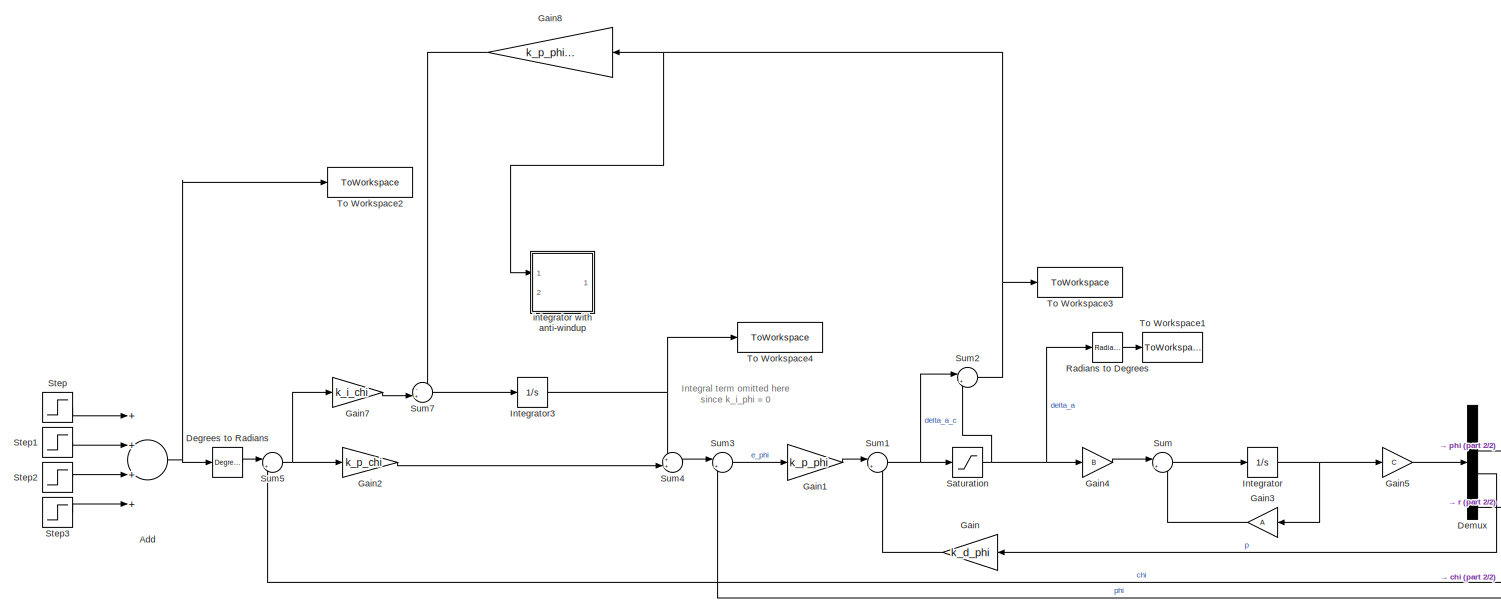
[diagram: root canvas - part 1/2, center side, full height]
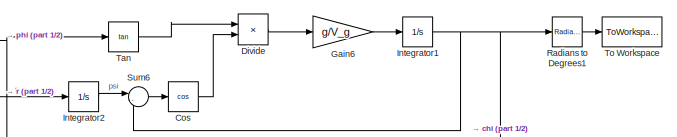
[diagram: root canvas - part 2/2, bottom right region]
MODEL slx_5d6dc7a0242d
KIND model
CONFIG AbsTol = auto
CONFIG EnableMultiTasking = off
CONFIG FixedStep = auto
CONFIG MaxStep = auto
CONFIG MinStep = auto
CONFIG RelTol = 1e-3
CONFIG SampleTimeConstraint = Unconstrained
CONFIG Solver = VariableStepAuto
CONFIG SolverName = VariableStepAuto
CONFIG StartTime = 0.0
CONFIG StopTime = sim_time
BLOCK [Sum] Add
  InputSameDT = off
  Inputs = ++++
  OutDataTypeStr = Inherit: Inherit via internal rule
  Ports = [4, 1]
  SaturateOnIntegerOverflow = off
BLOCK [Trigonometry] Cos
  Operator = cos
  Ports = [1, 1]
BLOCK [Reference] Degrees to Radians  REF=simulink_extras/Transformations/Degrees to
Radians
  Ports = [1, 1]
  SourceBlock = simulink_extras/Transformations/Degrees to\nRadians
  SourceProductBaseCode = SL
  SourceProductName = Simulink
  SourceType = DegreesToRadians
BLOCK [Demux] Demux
  DisplayOption = bar
  Ports = [1, 4]
BLOCK [Product] Divide
  InputSameDT = off
  Inputs = **
  OutDataTypeStr = Inherit: Inherit via internal rule
  Ports = [2, 1]
  RndMeth = Floor
  SaturateOnIntegerOverflow = off
BLOCK [Gain] Gain
  Gain = k_d_phi
  OutDataTypeStr = Inherit: Inherit via internal rule
  ParamDataTypeStr = Inherit: Inherit via internal rule
  SaturateOnIntegerOverflow = off
BLOCK [Gain] Gain1
  Gain = k_p_phi
  OutDataTypeStr = Inherit: Inherit via internal rule
  ParamDataTypeStr = Inherit: Inherit via internal rule
  SaturateOnIntegerOverflow = off
BLOCK [Gain] Gain2
  Gain = k_p_chi
  OutDataTypeStr = Inherit: Inherit via internal rule
  ParamDataTypeStr = Inherit: Inherit via internal rule
  SaturateOnIntegerOverflow = off
BLOCK [Gain] Gain3
  Gain = A
  Multiplication = Matrix(K*u)
  OutDataTypeStr = Inherit: Inherit via internal rule
  ParamDataTypeStr = Inherit: Inherit via internal rule
  SaturateOnIntegerOverflow = off
BLOCK [Gain] Gain4
  Gain = B
  Multiplication = Matrix(K*u)
  OutDataTypeStr = Inherit: Inherit via internal rule
  ParamDataTypeStr = Inherit: Inherit via internal rule
  SaturateOnIntegerOverflow = off
BLOCK [Gain] Gain5
  Gain = C
  Multiplication = Matrix(K*u)
  OutDataTypeStr = Inherit: Inherit via internal rule
  ParamDataTypeStr = Inherit: Inherit via internal rule
  SaturateOnIntegerOverflow = off
BLOCK [Gain] Gain6
  Gain = g/V_g
  OutDataTypeStr = Inherit: Inherit via internal rule
  ParamDataTypeStr = Inherit: Inherit via internal rule
  SaturateOnIntegerOverflow = off
BLOCK [Gain] Gain7
  Gain = k_i_chi
  OutDataTypeStr = Inherit: Inherit via internal rule
  ParamDataTypeStr = Inherit: Inherit via internal rule
  SaturateOnIntegerOverflow = off
BLOCK [Gain] Gain8
  Gain = k_p_phi*k_p_chi*0.5
  OutDataTypeStr = Inherit: Inherit via internal rule
  ParamDataTypeStr = Inherit: Inherit via internal rule
  SaturateOnIntegerOverflow = off
BLOCK [Integrator] Integrator
  Ports = [1, 1]
BLOCK [Integrator] Integrator1
  Ports = [1, 1]
BLOCK [Integrator] Integrator2
  Ports = [1, 1]
BLOCK [Integrator] Integrator3
  Ports = [1, 1]
BLOCK [Reference] Radians to Degrees  REF=simulink_extras/Transformations/Radians
to Degrees
  Ports = [1, 1]
  SourceBlock = simulink_extras/Transformations/Radians\nto Degrees
  SourceProductBaseCode = SL
  SourceProductName = Simulink
  SourceType = RadiansToDegrees
BLOCK [Reference] Radians to Degrees1  REF=simulink_extras/Transformations/Radians
to Degrees
  Ports = [1, 1]
  SourceBlock = simulink_extras/Transformations/Radians\nto Degrees
  SourceProductBaseCode = SL
  SourceProductName = Simulink
  SourceType = RadiansToDegrees
BLOCK [Saturate] Saturation
  InputPortMap = u0
  LowerLimit = -pi/6
  Ports = [1, 1]
  UpperLimit = pi/6
BLOCK [Step] Step
  After = 7.5
  SampleTime = 0
  Time = 100
BLOCK [Step] Step1
  After = 7.5
  SampleTime = 0
  Time = 150
BLOCK [Step] Step2
  After = -15
  SampleTime = 0
  Time = 250
BLOCK [Step] Step3
  After = 0
  SampleTime = 0
  Time = 300
BLOCK [Sum] Sum
  IconShape = round
  InputSameDT = off
  Inputs = |++
  OutDataTypeStr = Inherit: Inherit via internal rule
  Ports = [2, 1]
  SaturateOnIntegerOverflow = off
BLOCK [Sum] Sum1
  IconShape = round
  InputSameDT = off
  Inputs = |+-
  OutDataTypeStr = Inherit: Inherit via internal rule
  Ports = [2, 1]
  SaturateOnIntegerOverflow = off
BLOCK [Sum] Sum2
  IconShape = round
  InputSameDT = off
  Inputs = |+-
  OutDataTypeStr = Inherit: Inherit via internal rule
  Ports = [2, 1]
  SaturateOnIntegerOverflow = off
BLOCK [Sum] Sum3
  IconShape = round
  InputSameDT = off
  Inputs = |+-
  OutDataTypeStr = Inherit: Inherit via internal rule
  Ports = [2, 1]
  SaturateOnIntegerOverflow = off
BLOCK [Sum] Sum4
  IconShape = round
  InputSameDT = off
  Inputs = ++|
  OutDataTypeStr = Inherit: Inherit via internal rule
  Ports = [2, 1]
  SaturateOnIntegerOverflow = off
BLOCK [Sum] Sum5
  IconShape = round
  InputSameDT = off
  Inputs = |+-
  OutDataTypeStr = Inherit: Inherit via internal rule
  Ports = [2, 1]
  SaturateOnIntegerOverflow = off
BLOCK [Sum] Sum6
  IconShape = round
  InputSameDT = off
  Inputs = |-+
  OutDataTypeStr = Inherit: Inherit via internal rule
  Ports = [2, 1]
  SaturateOnIntegerOverflow = off
BLOCK [Sum] Sum7
  IconShape = round
  InputSameDT = off
  Inputs = -+|
  OutDataTypeStr = Inherit: Inherit via internal rule
  Ports = [2, 1]
  SaturateOnIntegerOverflow = off
BLOCK [Trigonometry] Tan
  Operator = tan
  Ports = [1, 1]
BLOCK [ToWorkspace] To Workspace
  FixptAsFi = on
  MaxDataPoints = inf
  Ports = [1]
  SampleTime = -1
  SaveFormat = Timeseries
  VariableName = chi
BLOCK [ToWorkspace] To Workspace1
  FixptAsFi = on
  MaxDataPoints = inf
  Ports = [1]
  SampleTime = -1
  SaveFormat = Timeseries
  VariableName = delta_control
BLOCK [ToWorkspace] To Workspace2
  FixptAsFi = on
  MaxDataPoints = inf
  Ports = [1]
  SampleTime = -1
  SaveFormat = Timeseries
  VariableName = chi_control
BLOCK [ToWorkspace] To Workspace3
  FixptAsFi = on
  MaxDataPoints = inf
  Ports = [1]
  SampleTime = -1
  SaveFormat = Timeseries
  VariableName = delta_saturated
BLOCK [ToWorkspace] To Workspace4
  FixptAsFi = on
  MaxDataPoints = inf
  Ports = [1]
  SampleTime = -1
  SaveFormat = Timeseries
  VariableName = e_chi_integral
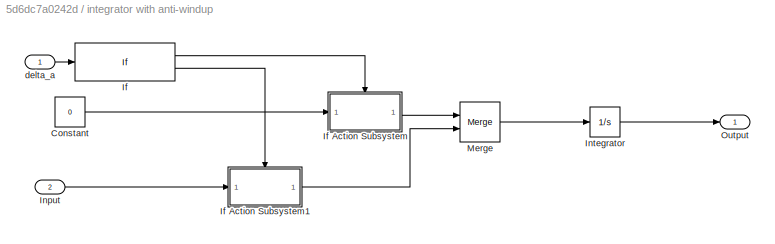
BLOCK [SubSystem] integrator with anti-windup
  Ports = [2, 1]
  RequestExecContextInheritance = off
BLOCK [Constant] integrator with anti-windup/Constant
  Value = 0
BLOCK [If] integrator with anti-windup/If
  IfExpression = u1 ~= 0
  Ports = [1, 2]
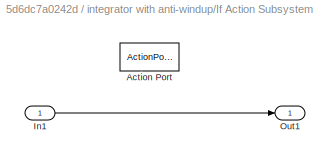
BLOCK [SubSystem] integrator with anti-windup/If Action Subsystem
  Ports = [1, 1, 0, 0, 0, 0, 0, 1]
  RequestExecContextInheritance = off
  TreatAsAtomicUnit = on
BLOCK [ActionPort] integrator with anti-windup/If Action Subsystem/Action Port
  ActionPortLabel = if(u1 ~= 0)
BLOCK [Inport] integrator with anti-windup/If Action Subsystem/In1
  IconDisplay = Port number
BLOCK [Outport] integrator with anti-windup/If Action Subsystem/Out1
  IconDisplay = Port number
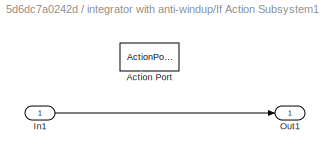
BLOCK [SubSystem] integrator with anti-windup/If Action Subsystem1
  Ports = [1, 1, 0, 0, 0, 0, 0, 1]
  RequestExecContextInheritance = off
  TreatAsAtomicUnit = on
BLOCK [ActionPort] integrator with anti-windup/If Action Subsystem1/Action Port
  ActionPortLabel = else
BLOCK [Inport] integrator with anti-windup/If Action Subsystem1/In1
  IconDisplay = Port number
BLOCK [Outport] integrator with anti-windup/If Action Subsystem1/Out1
  IconDisplay = Port number
BLOCK [Inport] integrator with anti-windup/Input
  IconDisplay = Port number
  Port = 2
BLOCK [Integrator] integrator with anti-windup/Integrator
  Ports = [1, 1]
BLOCK [Merge] integrator with anti-windup/Merge
  Ports = [2, 1]
BLOCK [Outport] integrator with anti-windup/Output
  IconDisplay = Port number
BLOCK [Inport] integrator with anti-windup/delta_a
  IconDisplay = Port number
ANNOTATION (root): Integral term omitted here since k_i_phi = 0
NET Add:1 -> Degrees to Radians:1, To Workspace2:1
LINE Cos:1 -> Divide:2
LINE Degrees to Radians:1 -> Sum5:1
NET Demux:2 -> Sum3:2, Tan:1
LINE Demux:3 -> Gain:1
LINE Demux:4 -> Integrator2:1
LINE Divide:1 -> Gain6:1
LINE Gain1:1 -> Sum1:1
LINE Gain2:1 -> Sum4:2
LINE Gain3:1 -> Sum:2
LINE Gain4:1 -> Sum:1
LINE Gain5:1 -> Demux:1
LINE Gain6:1 -> Integrator1:1
LINE Gain7:1 -> Sum7:2
LINE Gain8:1 -> Sum7:1
LINE Gain:1 -> Sum1:2
NET Integrator1:1 -> Radians to Degrees1:1, Sum5:2, Sum6:2
LINE Integrator2:1 -> Sum6:1
NET Integrator3:1 -> Sum4:1, To Workspace4:1
NET Integrator:1 -> Gain3:1, Gain5:1
LINE Radians to Degrees1:1 -> To Workspace:1
LINE Radians to Degrees:1 -> To Workspace1:1
NET Saturation:1 -> Gain4:1, Radians to Degrees:1, Sum2:2
LINE Step1:1 -> Add:2
LINE Step2:1 -> Add:3
LINE Step3:1 -> Add:4
LINE Step:1 -> Add:1
NET Sum1:1 -> Saturation:1, Sum2:1
NET Sum2:1 -> Gain8:1, To Workspace3:1, integrator with anti-windup:1
LINE Sum3:1 -> Gain1:1
LINE Sum4:1 -> Sum3:1
NET Sum5:1 -> Gain2:1, Gain7:1
LINE Sum6:1 -> Cos:1
LINE Sum7:1 -> Integrator3:1
LINE Sum:1 -> Integrator:1
LINE Tan:1 -> Divide:1
LINE integrator with anti-windup/Constant:1 -> integrator with anti-windup/If Action Subsystem:1
LINE integrator with anti-windup/If Action Subsystem/In1:1 -> integrator with anti-windup/If Action Subsystem/Out1:1
LINE integrator with anti-windup/If Action Subsystem1/In1:1 -> integrator with anti-windup/If Action Subsystem1/Out1:1
LINE integrator with anti-windup/If Action Subsystem1:1 -> integrator with anti-windup/Merge:2
LINE integrator with anti-windup/If Action Subsystem:1 -> integrator with anti-windup/Merge:1
LINE integrator with anti-windup/If:1 -> integrator with anti-windup/If Action Subsystem:ifaction
LINE integrator with anti-windup/If:2 -> integrator with anti-windup/If Action Subsystem1:ifaction
LINE integrator with anti-windup/Input:1 -> integrator with anti-windup/If Action Subsystem1:1
LINE integrator with anti-windup/Integrator:1 -> integrator with anti-windup/Output:1
LINE integrator with anti-windup/Merge:1 -> integrator with anti-windup/Integrator:1
LINE integrator with anti-windup/delta_a:1 -> integrator with anti-windup/If:1
note: NET lines group one-source signal fan-out (src -> all destinations, sorted); 1:1 wires keep LINE
